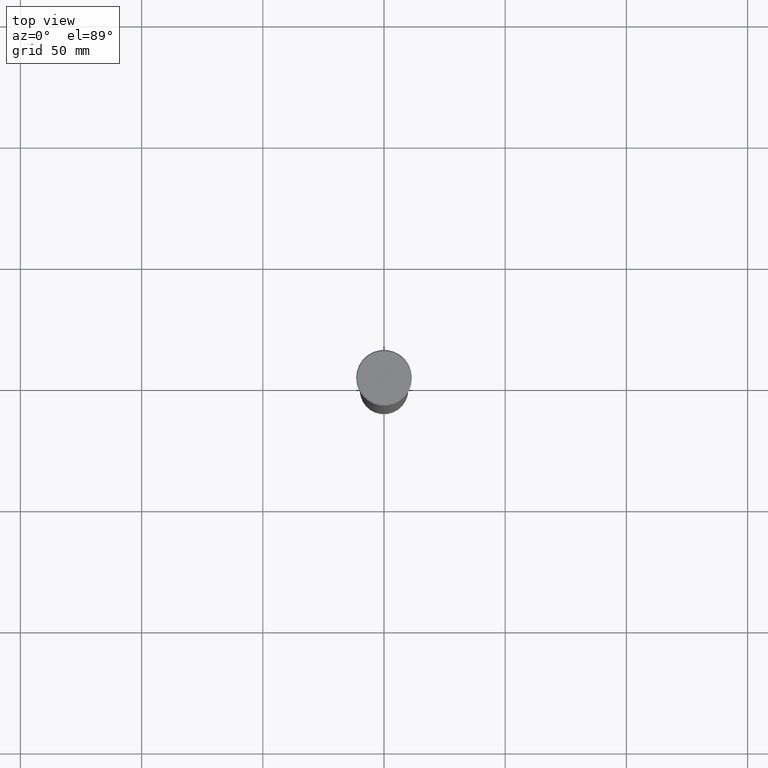
[diagram: clean part render]
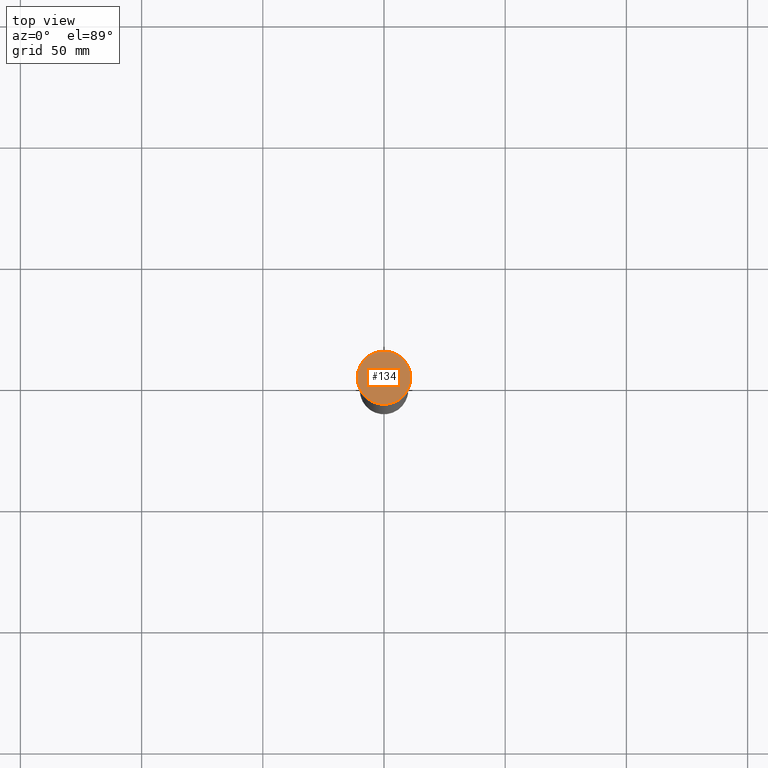
[diagram: same view with one face highlighted and labeled with its STEP entity id]
A machine part, top view. The second image highlights one B-rep face of the part: STEP entity #134.
In plain terms, the highlighted planar face has unit normal (0, -0, 1).
Its self-contained STEP definition (entity closure, byte-faithful):
#4 = CARTESIAN_POINT ( 'NONE',  ( 0.000000000000000000, 0.000000000000000000, 0.000000000000000000 ) ) ;
#52 = VERTEX_POINT ( 'NONE', #402 ) ;
#54 = PLANE ( 'NONE',  #588 ) ;
#62 = FACE_OUTER_BOUND ( 'NONE', #454, .T. ) ;
#64 = ORIENTED_EDGE ( 'NONE', *, *, #512, .T. ) ;
#84 = VERTEX_POINT ( 'NONE', #217 ) ;
#118 = AXIS2_PLACEMENT_3D ( 'NONE', #266, #440, #123 ) ;
#123 = DIRECTION ( 'NONE',  ( 1.000000000000000000, 0.000000000000000000, 0.000000000000000000 ) ) ;
#131 = DIRECTION ( 'NONE',  ( -0.000000000000000000, -0.000000000000000000, 1.000000000000000000 ) ) ;
#134 = ADVANCED_FACE ( 'NONE', ( #62 ), #54, .T. ) ;
#217 = CARTESIAN_POINT ( 'NONE',  ( 11.00000000000000000, 1.377727649040772389E-15, 0.000000000000000000 ) ) ;
#246 = DIRECTION ( 'NONE',  ( 1.000000000000000000, 0.000000000000000000, 0.000000000000000000 ) ) ;
#266 = CARTESIAN_POINT ( 'NONE',  ( 0.000000000000000000, 0.000000000000000000, 0.000000000000000000 ) ) ;
#280 = DIRECTION ( 'NONE',  ( 1.000000000000000000, 0.000000000000000000, 0.000000000000000000 ) ) ;
#316 = ORIENTED_EDGE ( 'NONE', *, *, #319, .T. ) ;
#319 = EDGE_CURVE ( 'NONE', #84, #52, #546, .T. ) ;
#354 = AXIS2_PLACEMENT_3D ( 'NONE', #590, #131, #280 ) ;
#402 = CARTESIAN_POINT ( 'NONE',  ( -11.00000000000000000, 0.000000000000000000, 0.000000000000000000 ) ) ;
#440 = DIRECTION ( 'NONE',  ( -0.000000000000000000, -0.000000000000000000, 1.000000000000000000 ) ) ;
#454 = EDGE_LOOP ( 'NONE', ( #64, #316 ) ) ;
#469 = DIRECTION ( 'NONE',  ( 0.000000000000000000, -0.000000000000000000, 1.000000000000000000 ) ) ;
#488 = CIRCLE ( 'NONE', #354, 11.00000000000000000 ) ;
#512 = EDGE_CURVE ( 'NONE', #52, #84, #488, .T. ) ;
#546 = CIRCLE ( 'NONE', #118, 11.00000000000000000 ) ;
#588 = AXIS2_PLACEMENT_3D ( 'NONE', #4, #469, #246 ) ;
#590 = CARTESIAN_POINT ( 'NONE',  ( 0.000000000000000000, 0.000000000000000000, 0.000000000000000000 ) ) ;